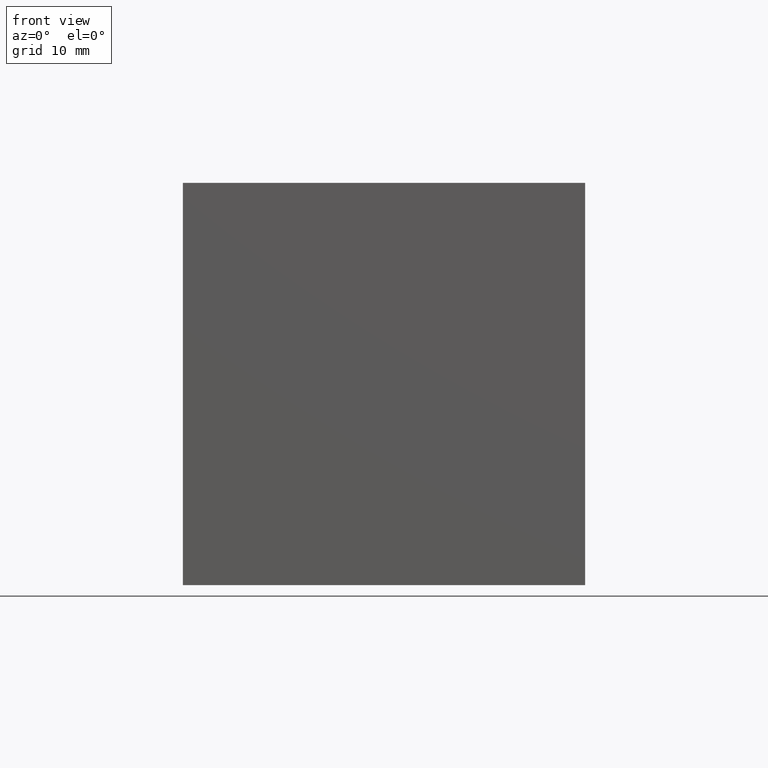
[diagram: clean part render]
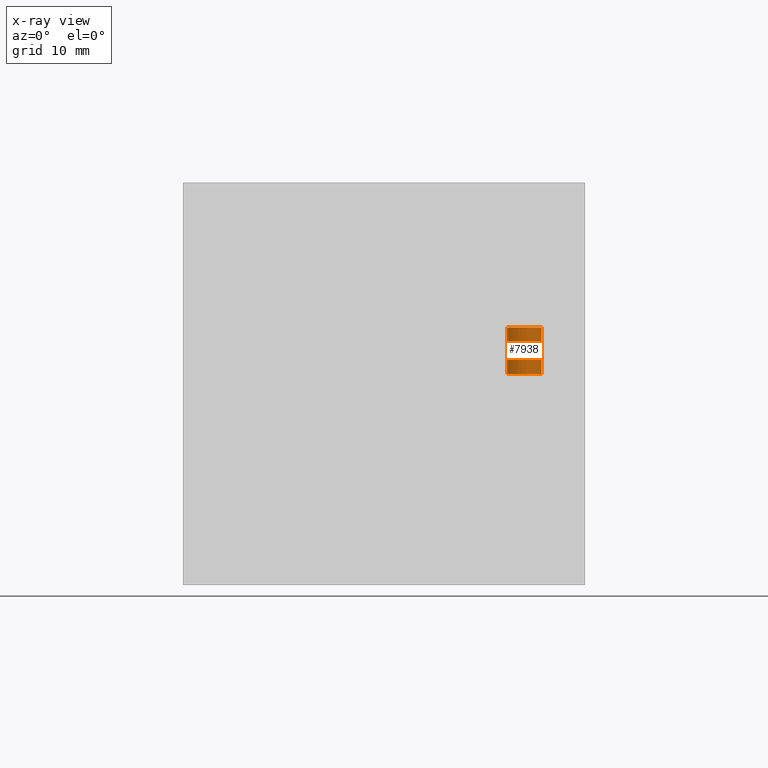
[diagram: x-ray — body ghosted, one internal face saturated and labeled with its STEP entity id]
A machine part, front view, then the same camera in x-ray: the body is ghosted and one INTERNAL B-rep face — a face not visible from any outside direction — is saturated and labeled: STEP entity #7938.
In plain terms, the highlighted cylindrical surface (bore or boss wall) has radius 1.8923 mm, axis along (0, 0, 1).
Its self-contained STEP definition (entity closure, byte-faithful):
#143=CIRCLE('',#8383,1.8923);
#144=CIRCLE('',#8384,1.8923);
#147=CIRCLE('',#8388,1.8923);
#183=CYLINDRICAL_SURFACE('',#8390,1.8923);
#859=FACE_OUTER_BOUND('',#1309,.T.);
#1309=EDGE_LOOP('',(#6901,#6902,#6903,#6904,#6905));
#2135=LINE('',#13287,#2951);
#2951=VECTOR('',#10072,1.8923);
#3693=VERTEX_POINT('',#13271);
#3694=VERTEX_POINT('',#13272);
#3698=VERTEX_POINT('',#13282);
#4770=EDGE_CURVE('',#3693,#3694,#143,.T.);
#4772=EDGE_CURVE('',#3694,#3693,#144,.T.);
#4775=EDGE_CURVE('',#3698,#3698,#147,.T.);
#4777=EDGE_CURVE('',#3698,#3694,#2135,.T.);
#6901=ORIENTED_EDGE('',*,*,#4775,.T.);
#6902=ORIENTED_EDGE('',*,*,#4777,.T.);
#6903=ORIENTED_EDGE('',*,*,#4770,.F.);
#6904=ORIENTED_EDGE('',*,*,#4772,.F.);
#6905=ORIENTED_EDGE('',*,*,#4777,.F.);
#7938=ADVANCED_FACE('',(#859),#183,.F.);
#8383=AXIS2_PLACEMENT_3D('',#13273,#10054,#10055);
#8384=AXIS2_PLACEMENT_3D('',#13276,#10057,#10058);
#8388=AXIS2_PLACEMENT_3D('',#13283,#10065,#10066);
#8390=AXIS2_PLACEMENT_3D('',#13286,#10070,#10071);
#10054=DIRECTION('center_axis',(0.,0.,1.));
#10055=DIRECTION('ref_axis',(1.,0.,0.));
#10057=DIRECTION('center_axis',(0.,0.,1.));
#10058=DIRECTION('ref_axis',(1.,0.,0.));
#10065=DIRECTION('center_axis',(0.,0.,1.));
#10066=DIRECTION('ref_axis',(1.,0.,0.));
#10070=DIRECTION('center_axis',(0.,0.,1.));
#10071=DIRECTION('ref_axis',(1.,0.,0.));
#10072=DIRECTION('',(0.,0.,-1.));
#13271=CARTESIAN_POINT('',(39.6113,45.72,23.3172));
#13272=CARTESIAN_POINT('',(35.8267,45.72,23.3172));
#13273=CARTESIAN_POINT('Origin',(37.719,45.72,23.3172));
#13276=CARTESIAN_POINT('Origin',(37.719,45.72,23.3172));
#13282=CARTESIAN_POINT('',(35.8267,45.72,28.448));
#13283=CARTESIAN_POINT('Origin',(37.719,45.72,28.448));
#13286=CARTESIAN_POINT('Origin',(37.719,45.72,33.8836));
#13287=CARTESIAN_POINT('',(35.8267,45.72,33.8836));